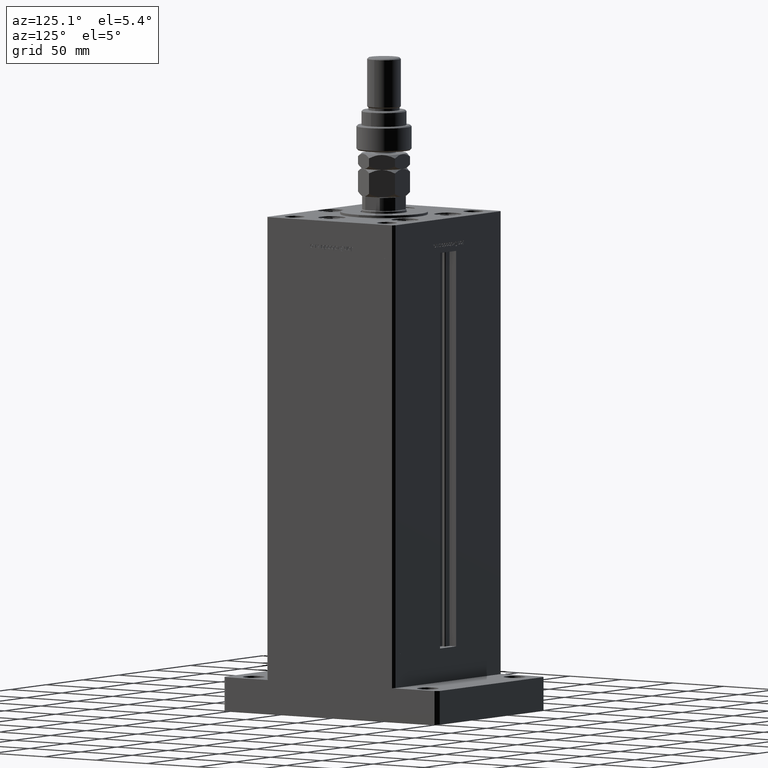
[diagram: clean part render]
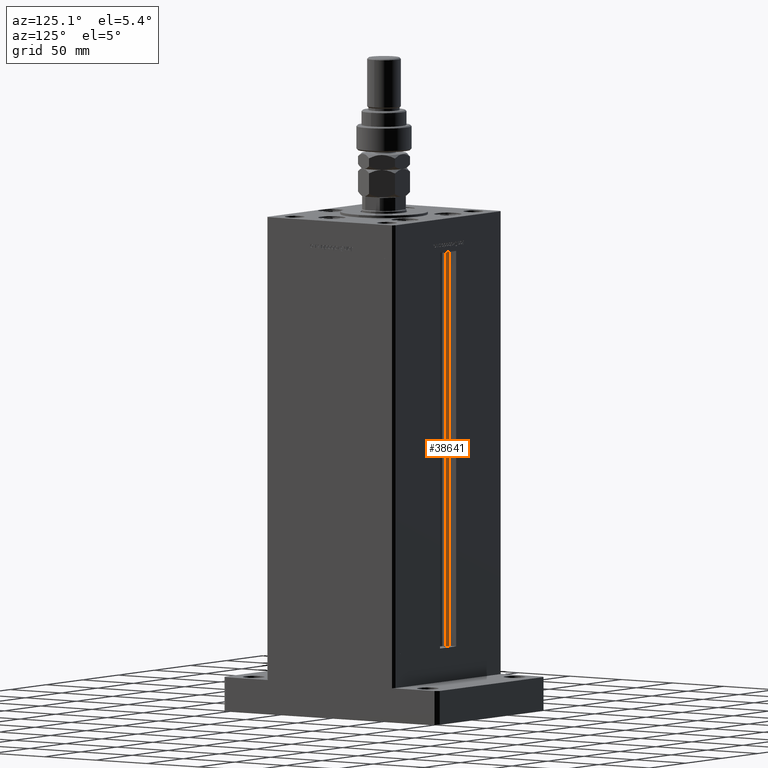
[diagram: same view with one face highlighted and labeled with its STEP entity id]
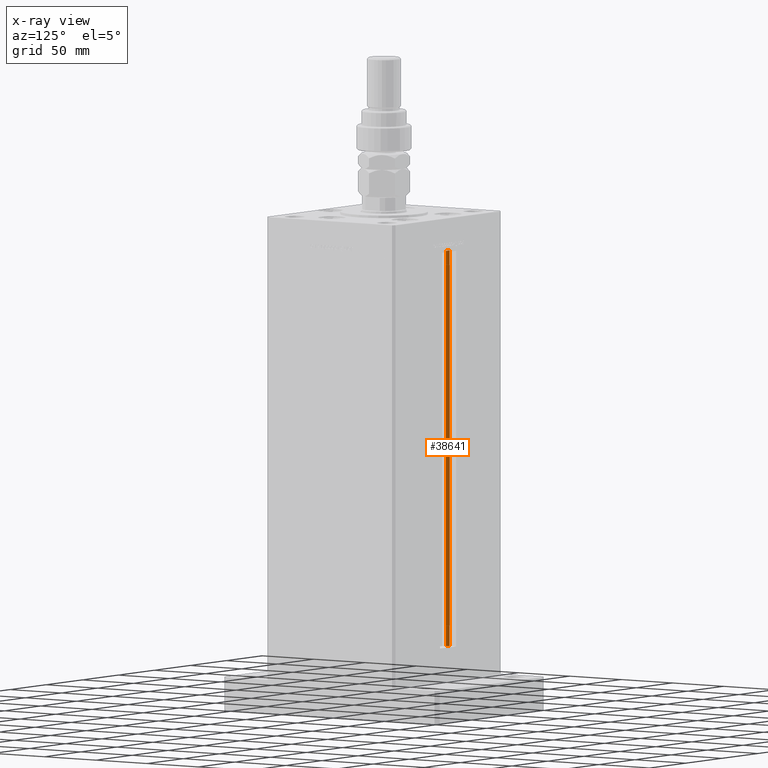
[diagram: x-ray of the same camera — body ghosted, the highlighted face saturated]
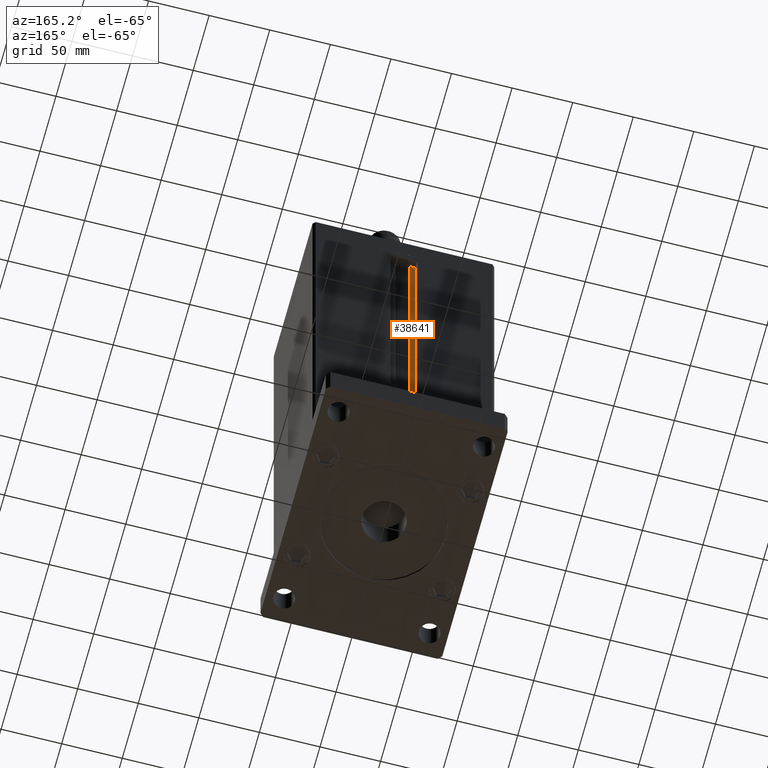
[diagram: same view with one face highlighted and labeled with its STEP entity id]
A machine part, auxiliary view. The second image highlights one B-rep face of the part: STEP entity #38641.
The next image is the same camera in x-ray: the body ghosted, the highlighted face saturated — about 0% of this face is hidden behind the body in this view.
A second angle (auxiliary view) of the same face is appended — the face is thin or edge-on in the first view.
In plain terms, the highlighted planar face has unit normal (0, -1, 0).
Its self-contained STEP definition (entity closure, byte-faithful):
#747 = DIRECTION ( 'NONE',  ( -0.000000000000000000, -0.000000000000000000, 1.000000000000000000 ) ) ;
#2379 = CARTESIAN_POINT ( 'NONE',  ( -6.183333333334001480, 55.99999999999999289, 0.000000000000000000 ) ) ;
#6798 = CARTESIAN_POINT ( 'NONE',  ( -6.183333333334001480, 55.99999999999999289, 0.000000000000000000 ) ) ;
#7112 = CARTESIAN_POINT ( 'NONE',  ( -6.183333333334001480, 55.99999999999999289, 317.0000000000000000 ) ) ;
#8690 = VERTEX_POINT ( 'NONE', #7112 ) ;
#11432 = CARTESIAN_POINT ( 'NONE',  ( -11.25000000000000178, 55.99999999999999289, 317.0000000000000000 ) ) ;
#11745 = LINE ( 'NONE', #24912, #47959 ) ;
#12654 = AXIS2_PLACEMENT_3D ( 'NONE', #6798, #44665, #44393 ) ;
#13201 = EDGE_CURVE ( 'NONE', #43821, #41823, #31620, .T. ) ;
#13702 = CARTESIAN_POINT ( 'NONE',  ( -11.25000000000000178, 55.99999999999999289, 0.000000000000000000 ) ) ;
#14695 = DIRECTION ( 'NONE',  ( -0.000000000000000000, -0.000000000000000000, 1.000000000000000000 ) ) ;
#15729 = ORIENTED_EDGE ( 'NONE', *, *, #32422, .F. ) ;
#18002 = DIRECTION ( 'NONE',  ( 1.000000000000000000, -0.000000000000000000, -0.000000000000000000 ) ) ;
#18320 = VECTOR ( 'NONE', #14695, 1000.000000000000000 ) ;
#18488 = LINE ( 'NONE', #31680, #20683 ) ;
#20683 = VECTOR ( 'NONE', #747, 1000.000000000000000 ) ;
#21048 = DIRECTION ( 'NONE',  ( -1.000000000000000000, 0.000000000000000000, 0.000000000000000000 ) ) ;
#24912 = CARTESIAN_POINT ( 'NONE',  ( -6.183333333334001480, 55.99999999999999289, 0.000000000000000000 ) ) ;
#28182 = EDGE_CURVE ( 'NONE', #43821, #40071, #11745, .T. ) ;
#30693 = ORIENTED_EDGE ( 'NONE', *, *, #13201, .T. ) ;
#31620 = LINE ( 'NONE', #49038, #18320 ) ;
#31680 = CARTESIAN_POINT ( 'NONE',  ( -6.183333333334001480, 55.99999999999999289, 0.000000000000000000 ) ) ;
#32422 = EDGE_CURVE ( 'NONE', #40071, #8690, #18488, .T. ) ;
#38641 = ADVANCED_FACE ( 'NONE', ( #54596 ), #53255, .F. ) ;
#40071 = VERTEX_POINT ( 'NONE', #2379 ) ;
#40353 = ORIENTED_EDGE ( 'NONE', *, *, #28182, .F. ) ;
#41823 = VERTEX_POINT ( 'NONE', #11432 ) ;
#42797 = CARTESIAN_POINT ( 'NONE',  ( 0.000000000000000000, 55.99999999999999289, 317.0000000000000000 ) ) ;
#43821 = VERTEX_POINT ( 'NONE', #13702 ) ;
#44393 = DIRECTION ( 'NONE',  ( 0.000000000000000000, 0.000000000000000000, -1.000000000000000000 ) ) ;
#44665 = DIRECTION ( 'NONE',  ( 0.000000000000000000, -1.000000000000000000, -0.000000000000000000 ) ) ;
#46354 = EDGE_LOOP ( 'NONE', ( #15729, #40353, #30693, #48948 ) ) ;
#46521 = LINE ( 'NONE', #42797, #48455 ) ;
#47959 = VECTOR ( 'NONE', #18002, 1000.000000000000000 ) ;
#48455 = VECTOR ( 'NONE', #21048, 1000.000000000000000 ) ;
#48948 = ORIENTED_EDGE ( 'NONE', *, *, #50846, .F. ) ;
#49038 = CARTESIAN_POINT ( 'NONE',  ( -11.25000000000000178, 55.99999999999999289, 0.000000000000000000 ) ) ;
#50846 = EDGE_CURVE ( 'NONE', #8690, #41823, #46521, .T. ) ;
#53255 = PLANE ( 'NONE',  #12654 ) ;
#54596 = FACE_OUTER_BOUND ( 'NONE', #46354, .T. ) ;